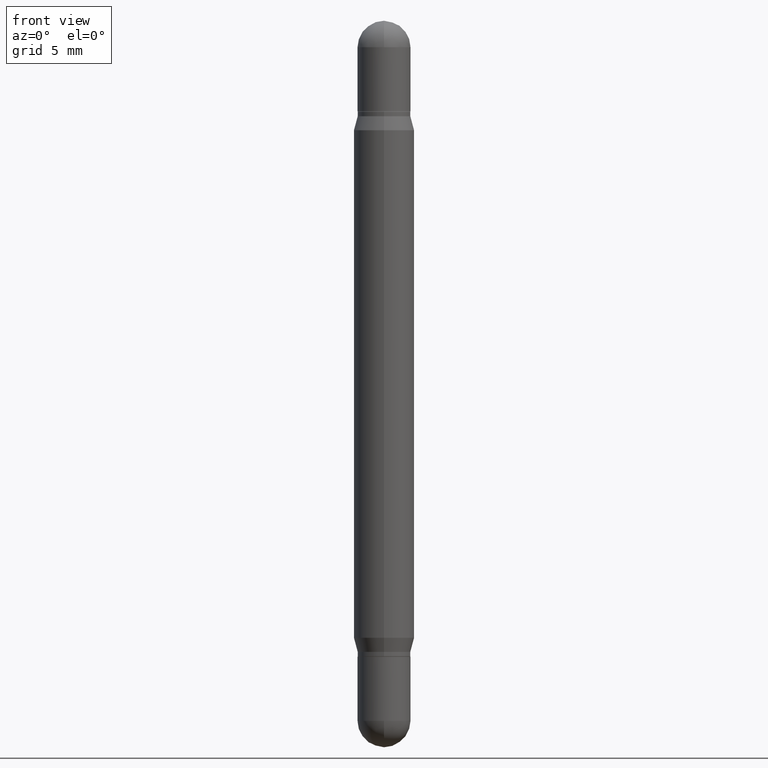
[diagram: clean part render]
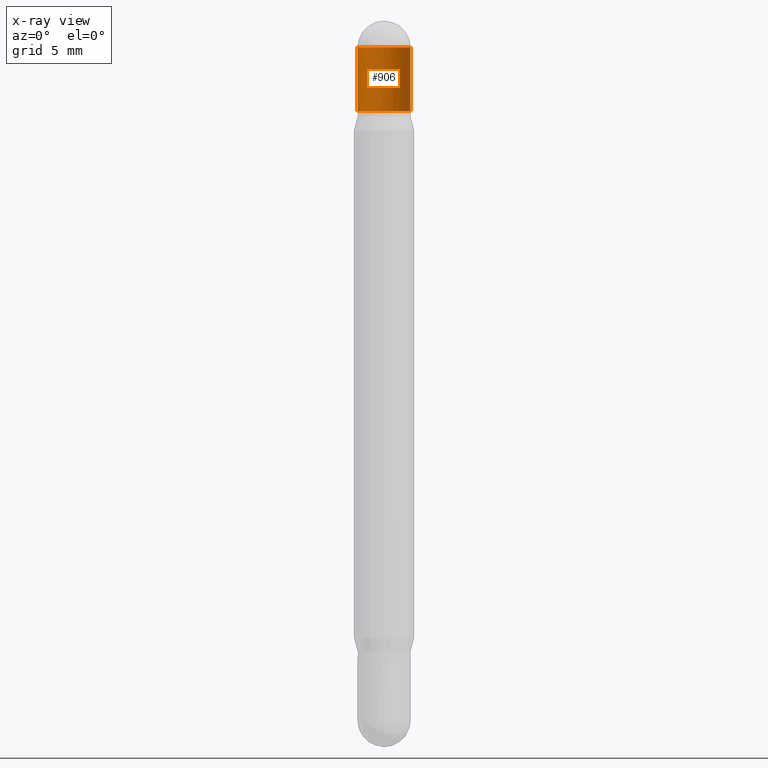
[diagram: x-ray — body ghosted, one internal face saturated and labeled with its STEP entity id]
A machine part, front view, then the same camera in x-ray: the body is ghosted and one INTERNAL B-rep face — a face not visible from any outside direction — is saturated and labeled: STEP entity #906.
In plain terms, the highlighted cylindrical surface (edge-blend (fillet) strip) has radius 1.3894 mm, axis along (-0, -0, -1).
Its self-contained STEP definition (entity closure, byte-faithful):
#12 = VERTEX_POINT ( 'NONE', #992 ) ;
#49 = AXIS2_PLACEMENT_3D ( 'NONE', #864, #624, #604 ) ;
#53 = ORIENTED_EDGE ( 'NONE', *, *, #598, .F. ) ;
#67 = LINE ( 'NONE', #148, #135 ) ;
#119 = EDGE_CURVE ( 'NONE', #181, #929, #174, .T. ) ;
#135 = VECTOR ( 'NONE', #952, 39.37007874015748143 ) ;
#148 = CARTESIAN_POINT ( 'NONE',  ( 0.05469999999999999862, -5.610289912835170741E-15, -1.500000000000000444 ) ) ;
#157 = ORIENTED_EDGE ( 'NONE', *, *, #448, .F. ) ;
#169 = AXIS2_PLACEMENT_3D ( 'NONE', #235, #495, #1013 ) ;
#174 = LINE ( 'NONE', #328, #434 ) ;
#181 = VERTEX_POINT ( 'NONE', #492 ) ;
#215 = CARTESIAN_POINT ( 'NONE',  ( 3.534436065579377749E-29, -1.992350652426753183E-16, -0.05470000000000037332 ) ) ;
#235 = CARTESIAN_POINT ( 'NONE',  ( 3.210900542521084585E-29, -6.595880592238425060E-16, -0.1870000000000002216 ) ) ;
#245 = CIRCLE ( 'NONE', #169, 0.05469999999999999862 ) ;
#263 = DIRECTION ( 'NONE',  ( 2.445468806185136597E-29, 3.479614466977828254E-15, 1.000000000000000000 ) ) ;
#271 = CARTESIAN_POINT ( 'NONE',  ( 0.05470000000000000556, -8.113796207026979199E-16, -0.05470000000000037332 ) ) ;
#273 = CARTESIAN_POINT ( 'NONE',  ( -0.05469999999999999862, -5.414232175515661906E-17, -0.1870000000000002216 ) ) ;
#326 = DIRECTION ( 'NONE',  ( 1.000000000000000000, -6.982962677686268288E-15, 0.000000000000000000 ) ) ;
#328 = CARTESIAN_POINT ( 'NONE',  ( -0.05469999999999999862, -4.853052613887629372E-15, -1.500000000000000444 ) ) ;
#333 = VERTEX_POINT ( 'NONE', #709 ) ;
#365 = FACE_OUTER_BOUND ( 'NONE', #824, .T. ) ;
#434 = VECTOR ( 'NONE', #1104, 39.37007874015748143 ) ;
#438 = ORIENTED_EDGE ( 'NONE', *, *, #594, .T. ) ;
#448 = EDGE_CURVE ( 'NONE', #1026, #12, #504, .T. ) ;
#492 = CARTESIAN_POINT ( 'NONE',  ( -0.05470000000000000556, -5.414232175515625545E-17, -0.05470000000000037332 ) ) ;
#495 = DIRECTION ( 'NONE',  ( 2.445468806185136597E-29, 3.479614466977828254E-15, 1.000000000000000000 ) ) ;
#504 = CIRCLE ( 'NONE', #578, 0.05470000000000000556 ) ;
#566 = DIRECTION ( 'NONE',  ( 1.000000000000000000, -6.982962677686268288E-15, 0.000000000000000000 ) ) ;
#578 = AXIS2_PLACEMENT_3D ( 'NONE', #215, #823, #566 ) ;
#594 = EDGE_CURVE ( 'NONE', #333, #929, #245, .T. ) ;
#598 = EDGE_CURVE ( 'NONE', #12, #181, #711, .T. ) ;
#600 = CARTESIAN_POINT ( 'NONE',  ( 3.534436065579377749E-29, -1.992350652426753183E-16, -0.05470000000000037332 ) ) ;
#604 = DIRECTION ( 'NONE',  ( 1.000000000000000000, -6.982962677686260400E-15, 0.000000000000000000 ) ) ;
#624 = DIRECTION ( 'NONE',  ( -2.445468806185136597E-29, -3.479614466977828254E-15, -1.000000000000000000 ) ) ;
#636 = EDGE_CURVE ( 'NONE', #1026, #333, #67, .T. ) ;
#706 = CYLINDRICAL_SURFACE ( 'NONE', #49, 0.05469999999999999862 ) ;
#709 = CARTESIAN_POINT ( 'NONE',  ( 0.05469999999999999862, -1.041556117693281390E-15, -0.1870000000000002216 ) ) ;
#711 = CIRCLE ( 'NONE', #1108, 0.05470000000000000556 ) ;
#768 = ORIENTED_EDGE ( 'NONE', *, *, #119, .F. ) ;
#789 = ORIENTED_EDGE ( 'NONE', *, *, #636, .T. ) ;
#823 = DIRECTION ( 'NONE',  ( 2.445468806185136597E-29, 3.479614466977828254E-15, 1.000000000000000000 ) ) ;
#824 = EDGE_LOOP ( 'NONE', ( #768, #53, #157, #789, #438 ) ) ;
#864 = CARTESIAN_POINT ( 'NONE',  ( 0.000000000000000000, -5.228321854365732350E-15, -1.500000000000000444 ) ) ;
#906 = ADVANCED_FACE ( 'NONE', ( #365 ), #706, .T. ) ;
#929 = VERTEX_POINT ( 'NONE', #273 ) ;
#952 = DIRECTION ( 'NONE',  ( -2.445468806185136877E-29, -3.479614466977828648E-15, -1.000000000000000000 ) ) ;
#992 = CARTESIAN_POINT ( 'NONE',  ( 3.752692404781387717E-16, 0.05469999999999989454, -0.05470000000000056067 ) ) ;
#1013 = DIRECTION ( 'NONE',  ( 1.000000000000000000, -6.982962677686266711E-15, 0.000000000000000000 ) ) ;
#1026 = VERTEX_POINT ( 'NONE', #271 ) ;
#1104 = DIRECTION ( 'NONE',  ( -2.445468806185136877E-29, -3.479614466977828648E-15, -1.000000000000000000 ) ) ;
#1108 = AXIS2_PLACEMENT_3D ( 'NONE', #600, #263, #326 ) ;